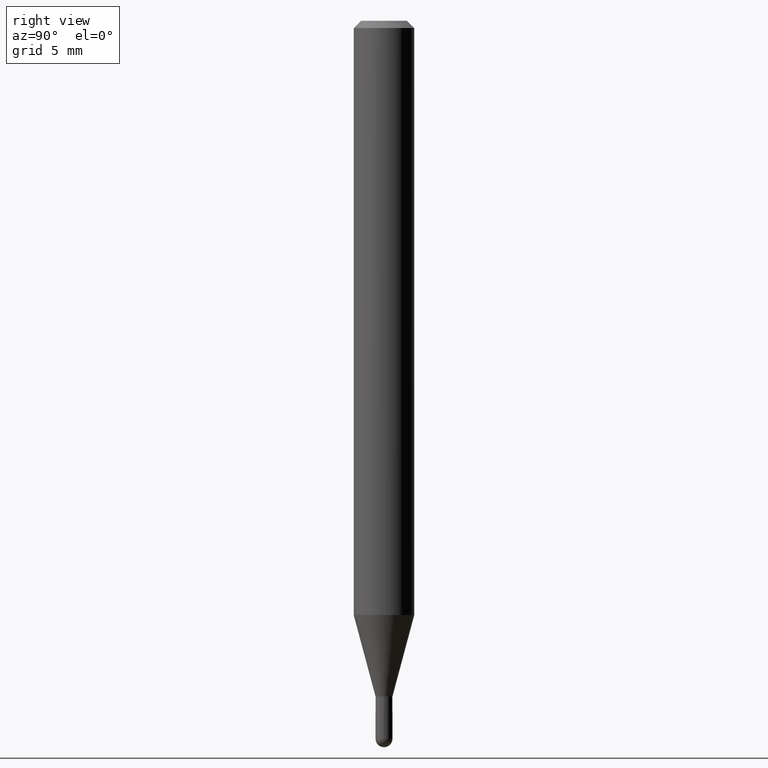
[diagram: clean part render]
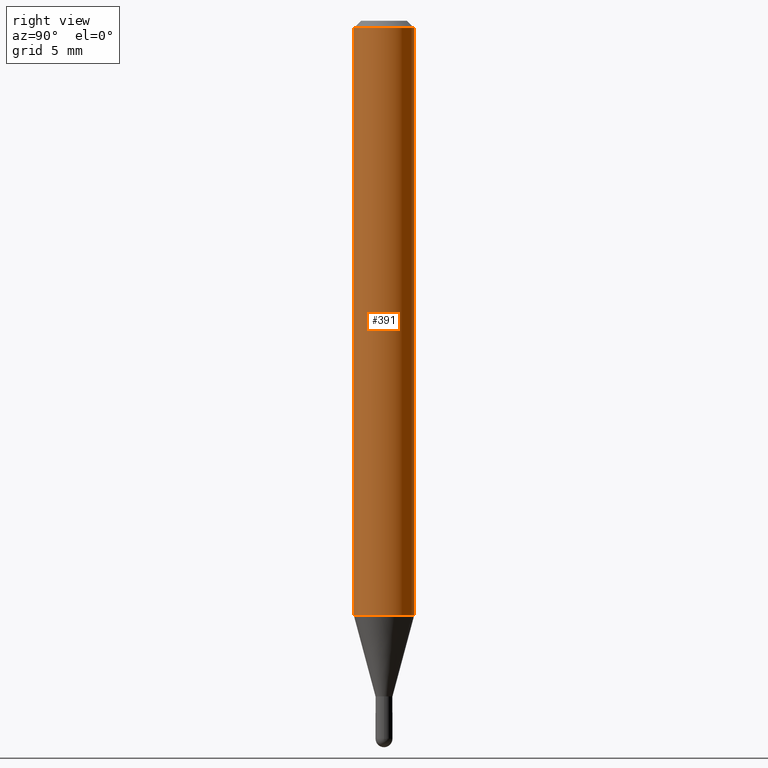
[diagram: same view with one face highlighted and labeled with its STEP entity id]
A machine part, right view. The second image highlights one B-rep face of the part: STEP entity #391.
In plain terms, the highlighted cylindrical surface (edge-blend (fillet) strip) has radius 1.5875 mm, axis along (-0, 0, 1).
Its self-contained STEP definition (entity closure, byte-faithful):
#19 = VECTOR ( 'NONE', #367, 39.37007874015748143 ) ;
#23 = DIRECTION ( 'NONE',  ( -6.982962677686265922E-15, -1.000000000000000000, 3.491476586053657757E-15 ) ) ;
#28 = CARTESIAN_POINT ( 'NONE',  ( 4.440892098500625669E-16, 0.06250000000000000000, -2.182172866283536098E-16 ) ) ;
#40 = VERTEX_POINT ( 'NONE', #465 ) ;
#63 = DIRECTION ( 'NONE',  ( -2.445472125040297483E-29, 3.491476586053657757E-15, 1.000000000000000000 ) ) ;
#69 = AXIS2_PLACEMENT_3D ( 'NONE', #277, #283, #281 ) ;
#76 = CIRCLE ( 'NONE', #212, 0.06250000000000000000 ) ;
#81 = EDGE_CURVE ( 'NONE', #40, #388, #76, .T. ) ;
#88 = AXIS2_PLACEMENT_3D ( 'NONE', #253, #63, #23 ) ;
#100 = CYLINDRICAL_SURFACE ( 'NONE', #88, 0.06250000000000000000 ) ;
#102 = VECTOR ( 'NONE', #335, 39.37007874015748143 ) ;
#113 = EDGE_CURVE ( 'NONE', #416, #454, #452, .T. ) ;
#127 = LINE ( 'NONE', #285, #19 ) ;
#133 = CARTESIAN_POINT ( 'NONE',  ( 3.000735434569753692E-29, -4.284243276978344601E-15, -1.227057713659404747 ) ) ;
#147 = EDGE_LOOP ( 'NONE', ( #219, #420, #312, #190 ) ) ;
#152 = EDGE_CURVE ( 'NONE', #40, #416, #127, .T. ) ;
#190 = ORIENTED_EDGE ( 'NONE', *, *, #152, .F. ) ;
#212 = AXIS2_PLACEMENT_3D ( 'NONE', #133, #325, #323 ) ;
#214 = LINE ( 'NONE', #28, #102 ) ;
#219 = ORIENTED_EDGE ( 'NONE', *, *, #81, .T. ) ;
#225 = CARTESIAN_POINT ( 'NONE',  ( 4.440892098500928887E-16, 0.06249999999999995837, -0.01500000000000028394 ) ) ;
#253 = CARTESIAN_POINT ( 'NONE',  ( 0.000000000000000000, 0.000000000000000000, 0.000000000000000000 ) ) ;
#258 = FACE_OUTER_BOUND ( 'NONE', #147, .T. ) ;
#276 = EDGE_CURVE ( 'NONE', #388, #454, #214, .T. ) ;
#277 = CARTESIAN_POINT ( 'NONE',  ( 3.668208187560462655E-31, -5.237214879080509612E-17, -0.01500000000000006710 ) ) ;
#281 = DIRECTION ( 'NONE',  ( -6.982962677686265922E-15, -1.000000000000000000, 3.483106191921935554E-15 ) ) ;
#283 = DIRECTION ( 'NONE',  ( -2.445472125040297483E-29, 3.491476586053657757E-15, 1.000000000000000000 ) ) ;
#285 = CARTESIAN_POINT ( 'NONE',  ( -4.364351673553916201E-16, -0.06250000000000000000, 2.182172866283536098E-16 ) ) ;
#312 = ORIENTED_EDGE ( 'NONE', *, *, #113, .F. ) ;
#323 = DIRECTION ( 'NONE',  ( -6.982962677686265922E-15, -1.000000000000000000, 4.370956789862821150E-15 ) ) ;
#325 = DIRECTION ( 'NONE',  ( -2.445472125040297483E-29, 3.491476586053657757E-15, 1.000000000000000000 ) ) ;
#335 = DIRECTION ( 'NONE',  ( -2.445472125040297483E-29, 3.491476586053657757E-15, 1.000000000000000000 ) ) ;
#367 = DIRECTION ( 'NONE',  ( -2.445472125040297483E-29, 3.491476586053657757E-15, 1.000000000000000000 ) ) ;
#388 = VERTEX_POINT ( 'NONE', #449 ) ;
#391 = ADVANCED_FACE ( 'NONE', ( #258 ), #100, .T. ) ;
#416 = VERTEX_POINT ( 'NONE', #431 ) ;
#420 = ORIENTED_EDGE ( 'NONE', *, *, #276, .T. ) ;
#431 = CARTESIAN_POINT ( 'NONE',  ( -4.364351673553912750E-16, -0.06250000000000005551, -0.01499999999999984852 ) ) ;
#449 = CARTESIAN_POINT ( 'NONE',  ( 4.440892098500924943E-16, 0.06249999999999569789, -1.227057713659404969 ) ) ;
#452 = CIRCLE ( 'NONE', #69, 0.06250000000000000000 ) ;
#454 = VERTEX_POINT ( 'NONE', #225 ) ;
#465 = CARTESIAN_POINT ( 'NONE',  ( -4.364351673553617913E-16, -0.06250000000000430211, -1.227057713659404525 ) ) ;